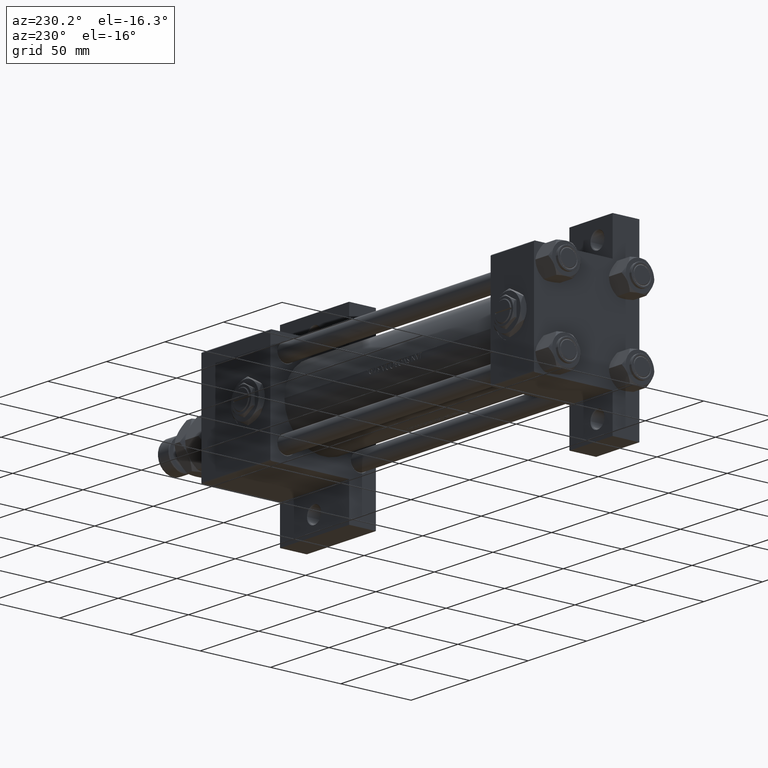
[diagram: clean part render]
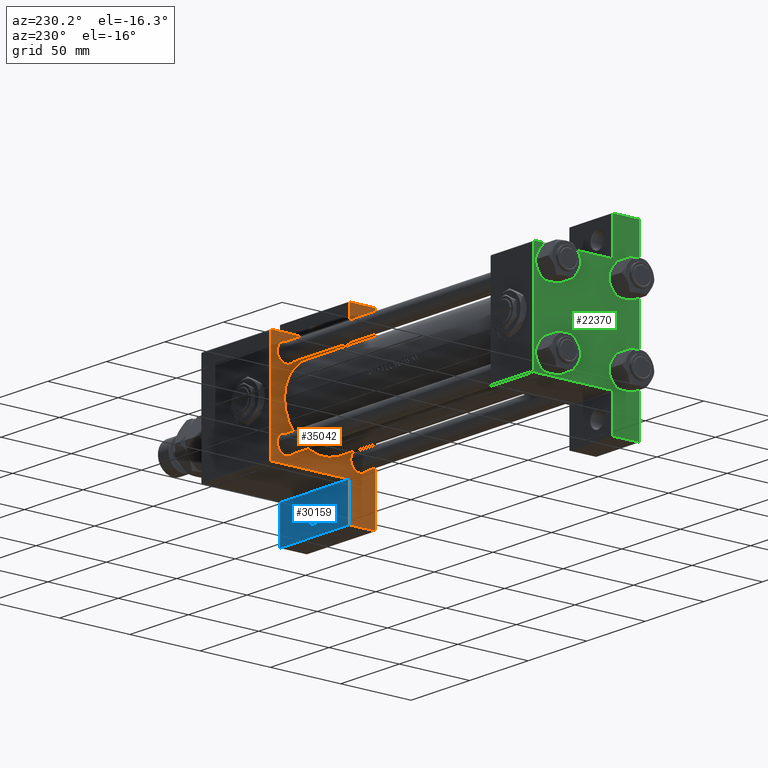
[diagram: same view with three faces highlighted in distinct colors, each labeled with its STEP entity id]
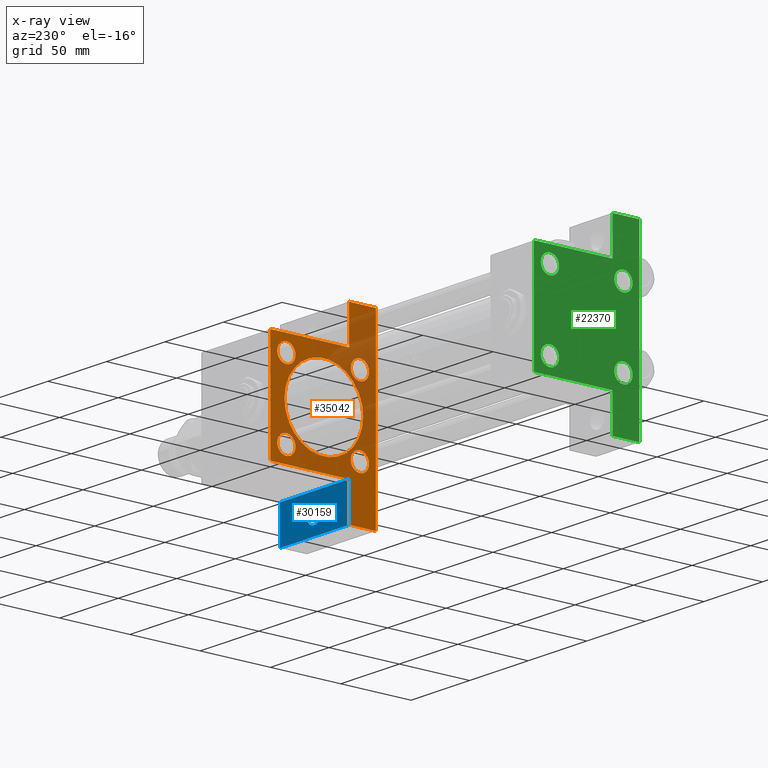
[diagram: x-ray of the same camera — body ghosted, the three highlighted faces saturated]
A machine part, auxiliary view with three faces highlighted in distinct colors.
The next image is the same camera in x-ray (body ghosted, the three faces saturated) — at least one of them is partly hidden behind the body in this view.
Their STEP definitions:

[orange] entity #35042 — the highlighted planar face has unit normal (-1, 0, 0).
#140 = DIRECTION ( 'NONE',  ( 1.000000000000000000, 0.000000000000000000, -0.000000000000000000 ) ) ;
#379 = EDGE_CURVE ( 'NONE', #19831, #35714, #4876, .T. ) ;
#416 = DIRECTION ( 'NONE',  ( 1.000000000000000000, 0.000000000000000000, -0.000000000000000000 ) ) ;
#511 = LINE ( 'NONE', #24060, #23307 ) ;
#594 = DIRECTION ( 'NONE',  ( 0.000000000000000000, 0.000000000000000000, 1.000000000000000000 ) ) ;
#682 = DIRECTION ( 'NONE',  ( 0.000000000000000000, 0.000000000000000000, -1.000000000000000000 ) ) ;
#790 = FACE_BOUND ( 'NONE', #49631, .T. ) ;
#925 = CARTESIAN_POINT ( 'NONE',  ( 225.0000000000000000, 37.50000000000000000, 37.49999999999999289 ) ) ;
#1015 = VERTEX_POINT ( 'NONE', #30078 ) ;
#1171 = EDGE_LOOP ( 'NONE', ( #29408, #1914, #22315, #2428, #14220, #44300, #37677, #29745, #23267, #49014 ) ) ;
#1790 = CARTESIAN_POINT ( 'NONE',  ( 225.0000000000000000, 26.14999999999999858, 26.15000000000000213 ) ) ;
#1914 = ORIENTED_EDGE ( 'NONE', *, *, #39760, .T. ) ;
#1984 = LINE ( 'NONE', #41700, #25754 ) ;
#2068 = DIRECTION ( 'NONE',  ( 0.000000000000000000, 0.000000000000000000, 1.000000000000000000 ) ) ;
#2079 = EDGE_CURVE ( 'NONE', #35714, #31867, #20825, .T. ) ;
#2094 = CIRCLE ( 'NONE', #37277, 6.500000000000008882 ) ;
#2306 = VECTOR ( 'NONE', #25437, 1000.000000000000000 ) ;
#2428 = ORIENTED_EDGE ( 'NONE', *, *, #379, .T. ) ;
#2810 = EDGE_CURVE ( 'NONE', #24066, #10867, #38996, .T. ) ;
#2938 = VERTEX_POINT ( 'NONE', #38190 ) ;
#3369 = VERTEX_POINT ( 'NONE', #7871 ) ;
#3680 = DIRECTION ( 'NONE',  ( 0.000000000000000000, 0.000000000000000000, 1.000000000000000000 ) ) ;
#4437 = DIRECTION ( 'NONE',  ( 1.000000000000000000, 0.000000000000000000, -0.000000000000000000 ) ) ;
#4580 = ORIENTED_EDGE ( 'NONE', *, *, #43549, .T. ) ;
#4646 = DIRECTION ( 'NONE',  ( -0.000000000000000000, 0.7071067811865474617, 0.7071067811865474617 ) ) ;
#4876 = LINE ( 'NONE', #48190, #22238 ) ;
#4996 = EDGE_CURVE ( 'NONE', #6253, #23666, #511, .T. ) ;
#5047 = CARTESIAN_POINT ( 'NONE',  ( 225.0000000000000000, 0.000000000000000000, -0.5000000000000004441 ) ) ;
#5183 = VERTEX_POINT ( 'NONE', #30285 ) ;
#6253 = VERTEX_POINT ( 'NONE', #45915 ) ;
#6256 = EDGE_LOOP ( 'NONE', ( #19313, #27223 ) ) ;
#6404 = CARTESIAN_POINT ( 'NONE',  ( 225.0000000000000000, 37.50000000000000000, -18.50000000000000355 ) ) ;
#6688 = AXIS2_PLACEMENT_3D ( 'NONE', #47500, #4437, #594 ) ;
#6868 = ORIENTED_EDGE ( 'NONE', *, *, #35113, .T. ) ;
#6940 = EDGE_CURVE ( 'NONE', #25761, #2938, #2094, .T. ) ;
#7415 = DIRECTION ( 'NONE',  ( 1.000000000000000000, 0.000000000000000000, 0.000000000000000000 ) ) ;
#7871 = CARTESIAN_POINT ( 'NONE',  ( 225.0000000000000000, -37.50000000000000000, -18.50000000000000000 ) ) ;
#8610 = AXIS2_PLACEMENT_3D ( 'NONE', #5047, #9395, #16818 ) ;
#8988 = FACE_BOUND ( 'NONE', #18325, .T. ) ;
#9061 = DIRECTION ( 'NONE',  ( 0.000000000000000000, 0.000000000000000000, -1.000000000000000000 ) ) ;
#9395 = DIRECTION ( 'NONE',  ( 1.000000000000000000, 0.000000000000000000, 0.000000000000000000 ) ) ;
#9411 = CARTESIAN_POINT ( 'NONE',  ( 225.0000000000000000, 37.24999999999996447, 37.24999999999996447 ) ) ;
#10752 = CARTESIAN_POINT ( 'NONE',  ( 225.0000000000000000, -63.50000000000002842, -18.50000000000000000 ) ) ;
#10867 = VERTEX_POINT ( 'NONE', #14576 ) ;
#11009 = DIRECTION ( 'NONE',  ( 0.000000000000000000, 0.000000000000000000, -1.000000000000000000 ) ) ;
#11034 = DIRECTION ( 'NONE',  ( 0.000000000000000000, -1.000000000000000000, 0.000000000000000000 ) ) ;
#11150 = AXIS2_PLACEMENT_3D ( 'NONE', #39506, #46967, #28457 ) ;
#11684 = EDGE_CURVE ( 'NONE', #43457, #45904, #16849, .T. ) ;
#11786 = LINE ( 'NONE', #15106, #20242 ) ;
#11793 = CARTESIAN_POINT ( 'NONE',  ( 225.0000000000000000, -26.14999999999999147, -26.15000000000000924 ) ) ;
#12252 = AXIS2_PLACEMENT_3D ( 'NONE', #26872, #7415, #11009 ) ;
#12296 = DIRECTION ( 'NONE',  ( 1.000000000000000000, 0.000000000000000000, -0.000000000000000000 ) ) ;
#12325 = FACE_BOUND ( 'NONE', #34485, .T. ) ;
#12433 = ORIENTED_EDGE ( 'NONE', *, *, #43875, .T. ) ;
#12568 = DIRECTION ( 'NONE',  ( 0.000000000000000000, 0.000000000000000000, 1.000000000000000000 ) ) ;
#13302 = AXIS2_PLACEMENT_3D ( 'NONE', #28936, #32024, #12568 ) ;
#14220 = ORIENTED_EDGE ( 'NONE', *, *, #2079, .T. ) ;
#14307 = CIRCLE ( 'NONE', #8610, 28.00000000000000000 ) ;
#14576 = CARTESIAN_POINT ( 'NONE',  ( 225.0000000000000000, -36.99999999999997158, 37.49999999999997868 ) ) ;
#14962 = EDGE_CURVE ( 'NONE', #5183, #1015, #18616, .T. ) ;
#15106 = CARTESIAN_POINT ( 'NONE',  ( 225.0000000000000000, 37.50000000000000000, -37.50000000000000000 ) ) ;
#15129 = ORIENTED_EDGE ( 'NONE', *, *, #18363, .T. ) ;
#15216 = VERTEX_POINT ( 'NONE', #47898 ) ;
#15840 = CARTESIAN_POINT ( 'NONE',  ( 225.0000000000000000, 37.50000000000000000, 36.99999999999993605 ) ) ;
#16060 = EDGE_CURVE ( 'NONE', #31867, #23666, #11786, .T. ) ;
#16403 = PLANE ( 'NONE',  #13302 ) ;
#16741 = EDGE_CURVE ( 'NONE', #15216, #10867, #17248, .T. ) ;
#16818 = DIRECTION ( 'NONE',  ( 0.000000000000000000, 0.000000000000000000, -1.000000000000000000 ) ) ;
#16849 = CIRCLE ( 'NONE', #45529, 6.499999999999995559 ) ;
#16907 = FACE_OUTER_BOUND ( 'NONE', #1171, .T. ) ;
#17248 = LINE ( 'NONE', #41335, #2306 ) ;
#17405 = DIRECTION ( 'NONE',  ( 0.000000000000000000, 0.000000000000000000, 1.000000000000000000 ) ) ;
#18325 = EDGE_LOOP ( 'NONE', ( #4580, #18555 ) ) ;
#18363 = EDGE_CURVE ( 'NONE', #37504, #26609, #37531, .T. ) ;
#18555 = ORIENTED_EDGE ( 'NONE', *, *, #11684, .T. ) ;
#18616 = CIRCLE ( 'NONE', #44824, 6.500000000000008882 ) ;
#19313 = ORIENTED_EDGE ( 'NONE', *, *, #41419, .T. ) ;
#19831 = VERTEX_POINT ( 'NONE', #6404 ) ;
#19964 = EDGE_CURVE ( 'NONE', #26273, #43719, #23696, .T. ) ;
#20038 = CIRCLE ( 'NONE', #32337, 6.500000000000008882 ) ;
#20192 = CARTESIAN_POINT ( 'NONE',  ( 225.0000000000000000, -63.50000000000002842, -37.50000000000000000 ) ) ;
#20242 = VECTOR ( 'NONE', #11034, 1000.000000000000000 ) ;
#20691 = VECTOR ( 'NONE', #4646, 1000.000000000000114 ) ;
#20825 = LINE ( 'NONE', #40312, #24759 ) ;
#21434 = DIRECTION ( 'NONE',  ( 0.000000000000000000, -9.251858538542972814E-17, -1.000000000000000000 ) ) ;
#21779 = DIRECTION ( 'NONE',  ( 1.000000000000000000, 0.000000000000000000, -0.000000000000000000 ) ) ;
#22071 = VECTOR ( 'NONE', #682, 1000.000000000000000 ) ;
#22238 = VECTOR ( 'NONE', #43817, 1000.000000000000000 ) ;
#22315 = ORIENTED_EDGE ( 'NONE', *, *, #24037, .T. ) ;
#22697 = EDGE_CURVE ( 'NONE', #6253, #3369, #27122, .T. ) ;
#23267 = ORIENTED_EDGE ( 'NONE', *, *, #40428, .F. ) ;
#23307 = VECTOR ( 'NONE', #31239, 1000.000000000000000 ) ;
#23666 = VERTEX_POINT ( 'NONE', #20192 ) ;
#23692 = VECTOR ( 'NONE', #34572, 1000.000000000000000 ) ;
#23696 = CIRCLE ( 'NONE', #12252, 28.00000000000000000 ) ;
#24037 = EDGE_CURVE ( 'NONE', #46103, #19831, #36027, .T. ) ;
#24060 = CARTESIAN_POINT ( 'NONE',  ( 225.0000000000000000, -63.50000000000002842, -18.50000000000000000 ) ) ;
#24066 = VERTEX_POINT ( 'NONE', #24489 ) ;
#24137 = CARTESIAN_POINT ( 'NONE',  ( 225.0000000000000000, 26.14999999999999858, -26.15000000000000213 ) ) ;
#24398 = CARTESIAN_POINT ( 'NONE',  ( 225.0000000000000000, -26.14999999999999147, -32.65000000000002700 ) ) ;
#24489 = CARTESIAN_POINT ( 'NONE',  ( 225.0000000000000000, -37.50000000000000000, 36.99999999999995026 ) ) ;
#24759 = VECTOR ( 'NONE', #9061, 1000.000000000000000 ) ;
#25437 = DIRECTION ( 'NONE',  ( 0.000000000000000000, -1.000000000000000000, -1.850371707708594316E-16 ) ) ;
#25754 = VECTOR ( 'NONE', #21434, 1000.000000000000000 ) ;
#25761 = VERTEX_POINT ( 'NONE', #27230 ) ;
#26273 = VERTEX_POINT ( 'NONE', #46052 ) ;
#26609 = VERTEX_POINT ( 'NONE', #24398 ) ;
#26714 = CARTESIAN_POINT ( 'NONE',  ( 225.0000000000000000, 26.14999999999999858, 19.65000000000000568 ) ) ;
#26872 = CARTESIAN_POINT ( 'NONE',  ( 225.0000000000000000, 0.000000000000000000, -0.5000000000000004441 ) ) ;
#27122 = LINE ( 'NONE', #10752, #23692 ) ;
#27223 = ORIENTED_EDGE ( 'NONE', *, *, #6940, .T. ) ;
#27230 = CARTESIAN_POINT ( 'NONE',  ( 225.0000000000000000, 26.14999999999999858, -32.65000000000001279 ) ) ;
#27309 = CARTESIAN_POINT ( 'NONE',  ( 225.0000000000000000, -26.14999999999999147, -26.15000000000000924 ) ) ;
#27398 = VECTOR ( 'NONE', #44010, 1000.000000000000114 ) ;
#27399 = DIRECTION ( 'NONE',  ( 0.000000000000000000, 0.000000000000000000, 1.000000000000000000 ) ) ;
#28018 = CIRCLE ( 'NONE', #49382, 6.500000000000008882 ) ;
#28457 = DIRECTION ( 'NONE',  ( 0.000000000000000000, 0.000000000000000000, 1.000000000000000000 ) ) ;
#28744 = CIRCLE ( 'NONE', #6688, 6.500000000000008882 ) ;
#28827 = ORIENTED_EDGE ( 'NONE', *, *, #19964, .T. ) ;
#28936 = CARTESIAN_POINT ( 'NONE',  ( 225.0000000000000000, 0.000000000000000000, 0.000000000000000000 ) ) ;
#29408 = ORIENTED_EDGE ( 'NONE', *, *, #16741, .F. ) ;
#29745 = ORIENTED_EDGE ( 'NONE', *, *, #22697, .T. ) ;
#30078 = CARTESIAN_POINT ( 'NONE',  ( 225.0000000000000000, -26.14999999999999147, 19.65000000000000213 ) ) ;
#30285 = CARTESIAN_POINT ( 'NONE',  ( 225.0000000000000000, -26.14999999999999147, 32.65000000000001990 ) ) ;
#31239 = DIRECTION ( 'NONE',  ( 0.000000000000000000, 0.000000000000000000, -1.000000000000000000 ) ) ;
#31867 = VERTEX_POINT ( 'NONE', #37268 ) ;
#32024 = DIRECTION ( 'NONE',  ( -1.000000000000000000, -0.000000000000000000, 0.000000000000000000 ) ) ;
#32038 = CARTESIAN_POINT ( 'NONE',  ( 225.0000000000000000, -37.24999999999997158, 37.24999999999997158 ) ) ;
#32137 = EDGE_CURVE ( 'NONE', #1015, #5183, #28744, .T. ) ;
#32337 = AXIS2_PLACEMENT_3D ( 'NONE', #24137, #38770, #3680 ) ;
#32725 = LINE ( 'NONE', #9411, #27398 ) ;
#33290 = DIRECTION ( 'NONE',  ( 1.000000000000000000, 0.000000000000000000, -0.000000000000000000 ) ) ;
#34485 = EDGE_LOOP ( 'NONE', ( #15129, #6868 ) ) ;
#34572 = DIRECTION ( 'NONE',  ( 0.000000000000000000, 1.000000000000000000, 0.000000000000000000 ) ) ;
#35042 = ADVANCED_FACE ( 'NONE', ( #47692, #8988, #48451, #12325, #790, #16907 ), #16403, .T. ) ;
#35113 = EDGE_CURVE ( 'NONE', #26609, #37504, #28018, .T. ) ;
#35714 = VERTEX_POINT ( 'NONE', #49799 ) ;
#35741 = DIRECTION ( 'NONE',  ( 0.000000000000000000, 0.000000000000000000, 1.000000000000000000 ) ) ;
#35930 = ORIENTED_EDGE ( 'NONE', *, *, #14962, .T. ) ;
#36027 = LINE ( 'NONE', #925, #22071 ) ;
#37207 = CIRCLE ( 'NONE', #11150, 6.499999999999995559 ) ;
#37268 = CARTESIAN_POINT ( 'NONE',  ( 225.0000000000000284, 63.50000000000000000, -37.50000000000000000 ) ) ;
#37277 = AXIS2_PLACEMENT_3D ( 'NONE', #37578, #140, #35741 ) ;
#37504 = VERTEX_POINT ( 'NONE', #49825 ) ;
#37531 = CIRCLE ( 'NONE', #48189, 6.500000000000008882 ) ;
#37578 = CARTESIAN_POINT ( 'NONE',  ( 225.0000000000000000, 26.14999999999999858, -26.15000000000000213 ) ) ;
#37677 = ORIENTED_EDGE ( 'NONE', *, *, #4996, .F. ) ;
#37698 = CARTESIAN_POINT ( 'NONE',  ( 225.0000000000000000, 3.429011037612589276E-15, -28.50000000000000000 ) ) ;
#38190 = CARTESIAN_POINT ( 'NONE',  ( 225.0000000000000000, 26.14999999999999858, -19.64999999999999503 ) ) ;
#38770 = DIRECTION ( 'NONE',  ( 1.000000000000000000, 0.000000000000000000, -0.000000000000000000 ) ) ;
#38996 = LINE ( 'NONE', #32038, #20691 ) ;
#39506 = CARTESIAN_POINT ( 'NONE',  ( 225.0000000000000000, 26.14999999999999858, 26.15000000000000213 ) ) ;
#39612 = DIRECTION ( 'NONE',  ( 0.000000000000000000, 0.000000000000000000, 1.000000000000000000 ) ) ;
#39760 = EDGE_CURVE ( 'NONE', #15216, #46103, #32725, .T. ) ;
#40312 = CARTESIAN_POINT ( 'NONE',  ( 225.0000000000000284, 63.50000000000000000, -18.50000000000000000 ) ) ;
#40428 = EDGE_CURVE ( 'NONE', #24066, #3369, #1984, .T. ) ;
#41335 = CARTESIAN_POINT ( 'NONE',  ( 225.0000000000000000, 37.50000000000000000, 37.49999999999999289 ) ) ;
#41419 = EDGE_CURVE ( 'NONE', #2938, #25761, #20038, .T. ) ;
#41700 = CARTESIAN_POINT ( 'NONE',  ( 225.0000000000000000, -37.50000000000000000, 37.49999999999997868 ) ) ;
#42252 = ORIENTED_EDGE ( 'NONE', *, *, #32137, .T. ) ;
#42671 = EDGE_LOOP ( 'NONE', ( #35930, #42252 ) ) ;
#43457 = VERTEX_POINT ( 'NONE', #26714 ) ;
#43549 = EDGE_CURVE ( 'NONE', #45904, #43457, #37207, .T. ) ;
#43719 = VERTEX_POINT ( 'NONE', #37698 ) ;
#43817 = DIRECTION ( 'NONE',  ( -0.000000000000000000, 1.000000000000000000, -0.000000000000000000 ) ) ;
#43837 = CARTESIAN_POINT ( 'NONE',  ( 225.0000000000000000, 26.14999999999999858, 32.65000000000000568 ) ) ;
#43875 = EDGE_CURVE ( 'NONE', #43719, #26273, #14307, .T. ) ;
#44010 = DIRECTION ( 'NONE',  ( 0.000000000000000000, 0.7071067811865474617, -0.7071067811865474617 ) ) ;
#44300 = ORIENTED_EDGE ( 'NONE', *, *, #16060, .T. ) ;
#44824 = AXIS2_PLACEMENT_3D ( 'NONE', #48724, #21779, #2068 ) ;
#45529 = AXIS2_PLACEMENT_3D ( 'NONE', #1790, #33290, #17405 ) ;
#45904 = VERTEX_POINT ( 'NONE', #43837 ) ;
#45915 = CARTESIAN_POINT ( 'NONE',  ( 225.0000000000000000, -63.50000000000002842, -18.50000000000000000 ) ) ;
#46052 = CARTESIAN_POINT ( 'NONE',  ( 225.0000000000000000, 0.000000000000000000, 27.50000000000000000 ) ) ;
#46103 = VERTEX_POINT ( 'NONE', #15840 ) ;
#46967 = DIRECTION ( 'NONE',  ( 1.000000000000000000, 0.000000000000000000, -0.000000000000000000 ) ) ;
#47500 = CARTESIAN_POINT ( 'NONE',  ( 225.0000000000000000, -26.14999999999999147, 26.15000000000000924 ) ) ;
#47692 = FACE_BOUND ( 'NONE', #42671, .T. ) ;
#47898 = CARTESIAN_POINT ( 'NONE',  ( 225.0000000000000000, 36.99999999999994316, 37.49999999999999289 ) ) ;
#48189 = AXIS2_PLACEMENT_3D ( 'NONE', #11793, #12296, #27399 ) ;
#48190 = CARTESIAN_POINT ( 'NONE',  ( 225.0000000000000284, 63.50000000000000000, -18.50000000000000000 ) ) ;
#48451 = FACE_BOUND ( 'NONE', #6256, .T. ) ;
#48724 = CARTESIAN_POINT ( 'NONE',  ( 225.0000000000000000, -26.14999999999999147, 26.15000000000000924 ) ) ;
#49014 = ORIENTED_EDGE ( 'NONE', *, *, #2810, .T. ) ;
#49382 = AXIS2_PLACEMENT_3D ( 'NONE', #27309, #416, #39612 ) ;
#49631 = EDGE_LOOP ( 'NONE', ( #28827, #12433 ) ) ;
#49799 = CARTESIAN_POINT ( 'NONE',  ( 225.0000000000000284, 63.50000000000000000, -18.50000000000000000 ) ) ;
#49825 = CARTESIAN_POINT ( 'NONE',  ( 225.0000000000000000, -26.14999999999999147, -19.65000000000000213 ) ) ;

[blue] entity #30159 — the highlighted planar face has unit normal (0, 1, 0).
#259 = ORIENTED_EDGE ( 'NONE', *, *, #37398, .F. ) ;
#379 = EDGE_CURVE ( 'NONE', #19831, #35714, #4876, .T. ) ;
#850 = DIRECTION ( 'NONE',  ( -1.000000000000000000, 8.232585987686542394E-16, -0.000000000000000000 ) ) ;
#2999 = VECTOR ( 'NONE', #46515, 1000.000000000000000 ) ;
#4876 = LINE ( 'NONE', #48190, #22238 ) ;
#6404 = CARTESIAN_POINT ( 'NONE',  ( 225.0000000000000000, 37.50000000000000000, -18.50000000000000355 ) ) ;
#8013 = ORIENTED_EDGE ( 'NONE', *, *, #379, .F. ) ;
#8619 = CARTESIAN_POINT ( 'NONE',  ( 255.0000000000000000, 51.00000000000000000, -18.50000000000000000 ) ) ;
#9864 = CARTESIAN_POINT ( 'NONE',  ( 249.0004999999997892, 51.00000000000000000, -18.50000000000000000 ) ) ;
#11380 = AXIS2_PLACEMENT_3D ( 'NONE', #8619, #43471, #31665 ) ;
#14992 = ORIENTED_EDGE ( 'NONE', *, *, #19195, .T. ) ;
#15454 = CIRCLE ( 'NONE', #44115, 5.999500000000212552 ) ;
#17691 = DIRECTION ( 'NONE',  ( 0.000000000000000000, 0.000000000000000000, 1.000000000000000000 ) ) ;
#17814 = EDGE_LOOP ( 'NONE', ( #14992, #46746 ) ) ;
#18625 = DIRECTION ( 'NONE',  ( 1.000000000000000000, 0.000000000000000000, 0.000000000000000000 ) ) ;
#19195 = EDGE_CURVE ( 'NONE', #40860, #40845, #33500, .T. ) ;
#19411 = EDGE_CURVE ( 'NONE', #40845, #40860, #15454, .T. ) ;
#19831 = VERTEX_POINT ( 'NONE', #6404 ) ;
#20303 = CARTESIAN_POINT ( 'NONE',  ( 225.0000000000000284, 37.50000000000000000, -18.50000000000000000 ) ) ;
#20599 = VECTOR ( 'NONE', #850, 1000.000000000000000 ) ;
#21858 = DIRECTION ( 'NONE',  ( 0.000000000000000000, -1.000000000000000000, 0.000000000000000000 ) ) ;
#22238 = VECTOR ( 'NONE', #43817, 1000.000000000000000 ) ;
#24158 = LINE ( 'NONE', #20303, #20599 ) ;
#29383 = LINE ( 'NONE', #33244, #2999 ) ;
#30147 = CARTESIAN_POINT ( 'NONE',  ( 255.0000000000000000, 51.00000000000000000, -18.50000000000000000 ) ) ;
#30159 = ADVANCED_FACE ( 'NONE', ( #50006, #46146 ), #45906, .T. ) ;
#31665 = DIRECTION ( 'NONE',  ( 1.000000000000000000, 0.000000000000000000, 0.000000000000000000 ) ) ;
#32955 = EDGE_CURVE ( 'NONE', #38470, #19831, #24158, .T. ) ;
#33141 = LINE ( 'NONE', #46218, #33895 ) ;
#33244 = CARTESIAN_POINT ( 'NONE',  ( 225.0000000000000284, 63.50000000000000000, -18.50000000000000000 ) ) ;
#33500 = CIRCLE ( 'NONE', #11380, 5.999500000000212552 ) ;
#33746 = DIRECTION ( 'NONE',  ( -0.000000000000000000, -0.000000000000000000, -1.000000000000000000 ) ) ;
#33895 = VECTOR ( 'NONE', #21858, 1000.000000000000000 ) ;
#35295 = ORIENTED_EDGE ( 'NONE', *, *, #32955, .F. ) ;
#35714 = VERTEX_POINT ( 'NONE', #49799 ) ;
#37398 = EDGE_CURVE ( 'NONE', #43403, #38470, #33141, .T. ) ;
#38197 = CARTESIAN_POINT ( 'NONE',  ( 0.000000000000000000, 0.000000000000000000, -18.50000000000000000 ) ) ;
#38264 = CARTESIAN_POINT ( 'NONE',  ( 284.0000000000000568, 63.49999999999997158, -18.50000000000000000 ) ) ;
#38470 = VERTEX_POINT ( 'NONE', #41287 ) ;
#40845 = VERTEX_POINT ( 'NONE', #9864 ) ;
#40860 = VERTEX_POINT ( 'NONE', #45496 ) ;
#41287 = CARTESIAN_POINT ( 'NONE',  ( 284.0000000000000568, 37.49999999999995026, -18.50000000000000000 ) ) ;
#42048 = DIRECTION ( 'NONE',  ( 1.000000000000000000, 0.000000000000000000, -0.000000000000000000 ) ) ;
#43403 = VERTEX_POINT ( 'NONE', #38264 ) ;
#43471 = DIRECTION ( 'NONE',  ( -0.000000000000000000, -0.000000000000000000, -1.000000000000000000 ) ) ;
#43817 = DIRECTION ( 'NONE',  ( -0.000000000000000000, 1.000000000000000000, -0.000000000000000000 ) ) ;
#44115 = AXIS2_PLACEMENT_3D ( 'NONE', #30147, #33746, #18625 ) ;
#44594 = EDGE_LOOP ( 'NONE', ( #8013, #35295, #259, #46778 ) ) ;
#45496 = CARTESIAN_POINT ( 'NONE',  ( 260.9995000000002392, 51.00000000000000000, -18.50000000000000000 ) ) ;
#45906 = PLANE ( 'NONE',  #46065 ) ;
#46065 = AXIS2_PLACEMENT_3D ( 'NONE', #38197, #17691, #42048 ) ;
#46146 = FACE_OUTER_BOUND ( 'NONE', #44594, .T. ) ;
#46218 = CARTESIAN_POINT ( 'NONE',  ( 284.0000000000000568, 63.49999999999997158, -18.50000000000000000 ) ) ;
#46515 = DIRECTION ( 'NONE',  ( 1.000000000000000000, -4.704334850106595794E-16, 0.000000000000000000 ) ) ;
#46746 = ORIENTED_EDGE ( 'NONE', *, *, #19411, .T. ) ;
#46778 = ORIENTED_EDGE ( 'NONE', *, *, #47604, .F. ) ;
#47604 = EDGE_CURVE ( 'NONE', #35714, #43403, #29383, .T. ) ;
#48190 = CARTESIAN_POINT ( 'NONE',  ( 225.0000000000000284, 63.50000000000000000, -18.50000000000000000 ) ) ;
#49799 = CARTESIAN_POINT ( 'NONE',  ( 225.0000000000000284, 63.50000000000000000, -18.50000000000000000 ) ) ;
#50006 = FACE_BOUND ( 'NONE', #17814, .T. ) ;

[green] entity #22370 — the highlighted planar face has unit normal (-1, 0, -0).
#142 = LINE ( 'NONE', #30130, #49992 ) ;
#456 = CIRCLE ( 'NONE', #31516, 6.500000000000023093 ) ;
#479 = AXIS2_PLACEMENT_3D ( 'NONE', #14248, #49651, #18859 ) ;
#777 = VERTEX_POINT ( 'NONE', #38359 ) ;
#1163 = CARTESIAN_POINT ( 'NONE',  ( 0.000000000000000000, 26.14999999999999858, 26.15000000000000213 ) ) ;
#1269 = DIRECTION ( 'NONE',  ( 0.000000000000000000, -1.000000000000000000, -9.251858538542972814E-17 ) ) ;
#1612 = EDGE_CURVE ( 'NONE', #2478, #7399, #6850, .T. ) ;
#1923 = CARTESIAN_POINT ( 'NONE',  ( 0.000000000000000000, 26.14999999999999858, -26.15000000000000213 ) ) ;
#2478 = VERTEX_POINT ( 'NONE', #8739 ) ;
#2750 = DIRECTION ( 'NONE',  ( 0.000000000000000000, 0.000000000000000000, 1.000000000000000000 ) ) ;
#3179 = ORIENTED_EDGE ( 'NONE', *, *, #5083, .T. ) ;
#3465 = CARTESIAN_POINT ( 'NONE',  ( 0.000000000000000000, 37.24999999999999289, 37.24999999999999289 ) ) ;
#3642 = CARTESIAN_POINT ( 'NONE',  ( 1.595073532467135757E-14, 63.50000000000001421, -18.50000000000000355 ) ) ;
#3705 = ORIENTED_EDGE ( 'NONE', *, *, #42070, .T. ) ;
#3749 = CIRCLE ( 'NONE', #479, 6.500000000000015987 ) ;
#3755 = EDGE_CURVE ( 'NONE', #18399, #19358, #42669, .T. ) ;
#4267 = DIRECTION ( 'NONE',  ( 1.000000000000000000, -0.000000000000000000, 0.000000000000000000 ) ) ;
#4516 = CARTESIAN_POINT ( 'NONE',  ( 0.000000000000000000, -26.14999999999999147, -26.15000000000000924 ) ) ;
#4913 = CARTESIAN_POINT ( 'NONE',  ( 0.000000000000000000, 0.000000000000000000, 0.000000000000000000 ) ) ;
#5083 = EDGE_CURVE ( 'NONE', #2478, #19123, #22691, .T. ) ;
#5270 = CARTESIAN_POINT ( 'NONE',  ( 0.000000000000000000, -26.14999999999999147, 26.15000000000000924 ) ) ;
#5657 = EDGE_CURVE ( 'NONE', #19358, #32962, #48931, .T. ) ;
#6461 = VERTEX_POINT ( 'NONE', #48176 ) ;
#6850 = LINE ( 'NONE', #22204, #32961 ) ;
#6974 = CIRCLE ( 'NONE', #10265, 6.500000000000023093 ) ;
#7399 = VERTEX_POINT ( 'NONE', #20285 ) ;
#7722 = LINE ( 'NONE', #3642, #15496 ) ;
#7758 = VECTOR ( 'NONE', #31376, 1000.000000000000114 ) ;
#7852 = EDGE_CURVE ( 'NONE', #10156, #28357, #3749, .T. ) ;
#8285 = ORIENTED_EDGE ( 'NONE', *, *, #3755, .T. ) ;
#8385 = AXIS2_PLACEMENT_3D ( 'NONE', #30386, #14521, #2750 ) ;
#8438 = CARTESIAN_POINT ( 'NONE',  ( 1.595073532467135441E-14, 63.50000000000000000, -18.50000000000000355 ) ) ;
#8739 = CARTESIAN_POINT ( 'NONE',  ( 0.000000000000000000, -37.50000000000000711, 36.99999999999999289 ) ) ;
#8854 = VERTEX_POINT ( 'NONE', #26061 ) ;
#10138 = CARTESIAN_POINT ( 'NONE',  ( 0.000000000000000000, 26.14999999999999858, 32.65000000000002700 ) ) ;
#10156 = VERTEX_POINT ( 'NONE', #11657 ) ;
#10265 = AXIS2_PLACEMENT_3D ( 'NONE', #5270, #17054, #12712 ) ;
#10438 = DIRECTION ( 'NONE',  ( 0.000000000000000000, 9.251858538542971581E-17, -1.000000000000000000 ) ) ;
#10674 = DIRECTION ( 'NONE',  ( 0.000000000000000000, -1.734723475976806848E-16, -1.000000000000000000 ) ) ;
#11162 = CARTESIAN_POINT ( 'NONE',  ( 1.595073532467135441E-14, 63.50000000000001421, 26.72167621838005047 ) ) ;
#11176 = ORIENTED_EDGE ( 'NONE', *, *, #30987, .T. ) ;
#11657 = CARTESIAN_POINT ( 'NONE',  ( 0.000000000000000000, -26.14999999999999147, -19.64999999999999503 ) ) ;
#12476 = EDGE_CURVE ( 'NONE', #32983, #39052, #35688, .T. ) ;
#12712 = DIRECTION ( 'NONE',  ( 0.000000000000000000, 0.000000000000000000, 1.000000000000000000 ) ) ;
#13103 = FACE_BOUND ( 'NONE', #36323, .T. ) ;
#13198 = DIRECTION ( 'NONE',  ( 0.000000000000000000, 0.000000000000000000, 1.000000000000000000 ) ) ;
#13512 = CARTESIAN_POINT ( 'NONE',  ( 1.595073532467135441E-14, 63.50000000000000000, -37.50000000000002132 ) ) ;
#14163 = CARTESIAN_POINT ( 'NONE',  ( 0.000000000000000000, 26.14999999999999858, -26.15000000000000213 ) ) ;
#14248 = CARTESIAN_POINT ( 'NONE',  ( 0.000000000000000000, -26.14999999999999147, -26.15000000000000924 ) ) ;
#14521 = DIRECTION ( 'NONE',  ( 1.000000000000000000, -0.000000000000000000, 0.000000000000000000 ) ) ;
#14709 = ORIENTED_EDGE ( 'NONE', *, *, #23086, .T. ) ;
#14997 = CARTESIAN_POINT ( 'NONE',  ( -0.000000000000000000, -37.25000000000000000, 37.25000000000000000 ) ) ;
#15496 = VECTOR ( 'NONE', #35143, 1000.000000000000000 ) ;
#15646 = LINE ( 'NONE', #26937, #27089 ) ;
#16463 = CARTESIAN_POINT ( 'NONE',  ( 3.977209754999747208E-16, -63.50000000000000000, -37.49999999999999289 ) ) ;
#16874 = EDGE_CURVE ( 'NONE', #39052, #32983, #22774, .T. ) ;
#16903 = DIRECTION ( 'NONE',  ( 0.000000000000000000, 0.000000000000000000, 1.000000000000000000 ) ) ;
#17054 = DIRECTION ( 'NONE',  ( 1.000000000000000000, -0.000000000000000000, 0.000000000000000000 ) ) ;
#17191 = FACE_BOUND ( 'NONE', #26590, .T. ) ;
#17227 = CARTESIAN_POINT ( 'NONE',  ( 0.000000000000000000, 26.14999999999999858, -19.64999999999998792 ) ) ;
#17281 = CARTESIAN_POINT ( 'NONE',  ( 0.000000000000000000, 36.99999999999999289, 37.50000000000000000 ) ) ;
#18148 = EDGE_LOOP ( 'NONE', ( #32325, #3179, #21095, #3705, #11176, #40030, #8285, #31454, #32530, #32323 ) ) ;
#18190 = CIRCLE ( 'NONE', #8385, 6.500000000000023093 ) ;
#18399 = VERTEX_POINT ( 'NONE', #8438 ) ;
#18576 = DIRECTION ( 'NONE',  ( 0.000000000000000000, 0.7071067811865474617, -0.7071067811865474617 ) ) ;
#18822 = LINE ( 'NONE', #3465, #45510 ) ;
#18859 = DIRECTION ( 'NONE',  ( 0.000000000000000000, 0.000000000000000000, 1.000000000000000000 ) ) ;
#19038 = VECTOR ( 'NONE', #19262, 1000.000000000000000 ) ;
#19123 = VERTEX_POINT ( 'NONE', #27901 ) ;
#19262 = DIRECTION ( 'NONE',  ( 4.278042683914906889E-17, -1.000000000000000000, 0.000000000000000000 ) ) ;
#19358 = VERTEX_POINT ( 'NONE', #13512 ) ;
#19592 = CIRCLE ( 'NONE', #32690, 6.500000000000015987 ) ;
#20125 = DIRECTION ( 'NONE',  ( 0.000000000000000000, 0.000000000000000000, 1.000000000000000000 ) ) ;
#20285 = CARTESIAN_POINT ( 'NONE',  ( -7.145701223179004046E-16, -37.50000000000000711, -18.50000000000000355 ) ) ;
#20516 = DIRECTION ( 'NONE',  ( -0.000000000000000000, 0.000000000000000000, 1.000000000000000000 ) ) ;
#21095 = ORIENTED_EDGE ( 'NONE', *, *, #27665, .F. ) ;
#22204 = CARTESIAN_POINT ( 'NONE',  ( 0.000000000000000000, -37.50000000000000711, 37.49999999999999289 ) ) ;
#22370 = ADVANCED_FACE ( 'NONE', ( #17191, #47717, #13103, #24871, #40517 ), #40012, .T. ) ;
#22691 = LINE ( 'NONE', #14997, #7758 ) ;
#22774 = CIRCLE ( 'NONE', #35044, 6.500000000000015987 ) ;
#23086 = EDGE_CURVE ( 'NONE', #28357, #10156, #19592, .T. ) ;
#23183 = EDGE_CURVE ( 'NONE', #18399, #777, #7722, .T. ) ;
#24080 = DIRECTION ( 'NONE',  ( 1.000000000000000000, -0.000000000000000000, 0.000000000000000000 ) ) ;
#24871 = FACE_BOUND ( 'NONE', #41488, .T. ) ;
#25068 = CARTESIAN_POINT ( 'NONE',  ( 0.000000000000000000, 37.49999999999999289, -37.50000000000000000 ) ) ;
#25164 = VERTEX_POINT ( 'NONE', #10138 ) ;
#25422 = EDGE_CURVE ( 'NONE', #38711, #32962, #142, .T. ) ;
#25657 = VERTEX_POINT ( 'NONE', #34939 ) ;
#26061 = CARTESIAN_POINT ( 'NONE',  ( 0.000000000000000000, 26.14999999999999858, 19.64999999999998437 ) ) ;
#26103 = AXIS2_PLACEMENT_3D ( 'NONE', #4913, #36162, #20516 ) ;
#26590 = EDGE_LOOP ( 'NONE', ( #34526, #33856 ) ) ;
#26937 = CARTESIAN_POINT ( 'NONE',  ( 0.000000000000000000, 37.49999999999999289, 37.50000000000000000 ) ) ;
#27089 = VECTOR ( 'NONE', #46188, 1000.000000000000000 ) ;
#27665 = EDGE_CURVE ( 'NONE', #47360, #19123, #15646, .T. ) ;
#27752 = CARTESIAN_POINT ( 'NONE',  ( 0.000000000000000000, -26.14999999999999147, -32.65000000000002700 ) ) ;
#27901 = CARTESIAN_POINT ( 'NONE',  ( 0.000000000000000000, -37.00000000000000711, 37.49999999999999289 ) ) ;
#27972 = ORIENTED_EDGE ( 'NONE', *, *, #34508, .T. ) ;
#28357 = VERTEX_POINT ( 'NONE', #27752 ) ;
#28825 = AXIS2_PLACEMENT_3D ( 'NONE', #1163, #44726, #13198 ) ;
#29043 = VERTEX_POINT ( 'NONE', #38437 ) ;
#29422 = CARTESIAN_POINT ( 'NONE',  ( 3.977209754999747208E-16, -63.50000000000000000, -18.50000000000000355 ) ) ;
#29777 = DIRECTION ( 'NONE',  ( 1.000000000000000000, -0.000000000000000000, 0.000000000000000000 ) ) ;
#29919 = EDGE_LOOP ( 'NONE', ( #43804, #14709 ) ) ;
#29989 = EDGE_CURVE ( 'NONE', #7399, #38711, #31042, .T. ) ;
#30130 = CARTESIAN_POINT ( 'NONE',  ( 3.977209754999747208E-16, -63.49999999999998579, 26.72167621838007889 ) ) ;
#30386 = CARTESIAN_POINT ( 'NONE',  ( 0.000000000000000000, -26.14999999999999147, 26.15000000000000924 ) ) ;
#30987 = EDGE_CURVE ( 'NONE', #6461, #777, #43114, .T. ) ;
#31042 = LINE ( 'NONE', #38745, #19038 ) ;
#31376 = DIRECTION ( 'NONE',  ( -0.000000000000000000, 0.7071067811865474617, 0.7071067811865474617 ) ) ;
#31454 = ORIENTED_EDGE ( 'NONE', *, *, #5657, .T. ) ;
#31516 = AXIS2_PLACEMENT_3D ( 'NONE', #40233, #24080, #16903 ) ;
#32191 = ORIENTED_EDGE ( 'NONE', *, *, #45112, .T. ) ;
#32323 = ORIENTED_EDGE ( 'NONE', *, *, #29989, .F. ) ;
#32325 = ORIENTED_EDGE ( 'NONE', *, *, #1612, .F. ) ;
#32530 = ORIENTED_EDGE ( 'NONE', *, *, #25422, .F. ) ;
#32690 = AXIS2_PLACEMENT_3D ( 'NONE', #4516, #4267, #20125 ) ;
#32711 = ORIENTED_EDGE ( 'NONE', *, *, #16874, .T. ) ;
#32820 = DIRECTION ( 'NONE',  ( 0.000000000000000000, 0.000000000000000000, -1.000000000000000000 ) ) ;
#32961 = VECTOR ( 'NONE', #10438, 1000.000000000000000 ) ;
#32962 = VERTEX_POINT ( 'NONE', #16463 ) ;
#32983 = VERTEX_POINT ( 'NONE', #17227 ) ;
#33856 = ORIENTED_EDGE ( 'NONE', *, *, #34295, .T. ) ;
#34224 = DIRECTION ( 'NONE',  ( 0.000000000000000000, -1.734723475976806848E-16, -1.000000000000000000 ) ) ;
#34295 = EDGE_CURVE ( 'NONE', #29043, #25657, #18190, .T. ) ;
#34508 = EDGE_CURVE ( 'NONE', #8854, #25164, #48500, .T. ) ;
#34526 = ORIENTED_EDGE ( 'NONE', *, *, #41331, .T. ) ;
#34939 = CARTESIAN_POINT ( 'NONE',  ( 0.000000000000000000, -26.14999999999999147, 32.65000000000003411 ) ) ;
#35044 = AXIS2_PLACEMENT_3D ( 'NONE', #14163, #29777, #45708 ) ;
#35143 = DIRECTION ( 'NONE',  ( -2.877097866686192789E-16, -1.000000000000000000, 0.000000000000000000 ) ) ;
#35688 = CIRCLE ( 'NONE', #48010, 6.500000000000015987 ) ;
#36162 = DIRECTION ( 'NONE',  ( -1.000000000000000000, 0.000000000000000000, -0.000000000000000000 ) ) ;
#36323 = EDGE_LOOP ( 'NONE', ( #43297, #32711 ) ) ;
#38041 = DIRECTION ( 'NONE',  ( 1.000000000000000000, -0.000000000000000000, 0.000000000000000000 ) ) ;
#38359 = CARTESIAN_POINT ( 'NONE',  ( 0.000000000000000000, 37.49999999999999289, -18.49999999999999645 ) ) ;
#38437 = CARTESIAN_POINT ( 'NONE',  ( 0.000000000000000000, -26.14999999999999147, 19.64999999999999147 ) ) ;
#38711 = VERTEX_POINT ( 'NONE', #29422 ) ;
#38745 = CARTESIAN_POINT ( 'NONE',  ( 3.977209754999744250E-16, -63.49999999999998579, -18.50000000000000355 ) ) ;
#39052 = VERTEX_POINT ( 'NONE', #44134 ) ;
#39584 = VECTOR ( 'NONE', #34224, 1000.000000000000000 ) ;
#40012 = PLANE ( 'NONE',  #26103 ) ;
#40030 = ORIENTED_EDGE ( 'NONE', *, *, #23183, .F. ) ;
#40233 = CARTESIAN_POINT ( 'NONE',  ( 0.000000000000000000, 26.14999999999999858, 26.15000000000000213 ) ) ;
#40517 = FACE_OUTER_BOUND ( 'NONE', #18148, .T. ) ;
#41270 = VECTOR ( 'NONE', #32820, 1000.000000000000000 ) ;
#41331 = EDGE_CURVE ( 'NONE', #25657, #29043, #6974, .T. ) ;
#41488 = EDGE_LOOP ( 'NONE', ( #32191, #27972 ) ) ;
#42070 = EDGE_CURVE ( 'NONE', #47360, #6461, #18822, .T. ) ;
#42669 = LINE ( 'NONE', #11162, #39584 ) ;
#43114 = LINE ( 'NONE', #44116, #41270 ) ;
#43297 = ORIENTED_EDGE ( 'NONE', *, *, #12476, .T. ) ;
#43804 = ORIENTED_EDGE ( 'NONE', *, *, #7852, .T. ) ;
#44116 = CARTESIAN_POINT ( 'NONE',  ( 0.000000000000000000, 37.49999999999999289, 37.50000000000000000 ) ) ;
#44134 = CARTESIAN_POINT ( 'NONE',  ( 0.000000000000000000, 26.14999999999999858, -32.65000000000001990 ) ) ;
#44726 = DIRECTION ( 'NONE',  ( 1.000000000000000000, -0.000000000000000000, 0.000000000000000000 ) ) ;
#45112 = EDGE_CURVE ( 'NONE', #25164, #8854, #456, .T. ) ;
#45494 = DIRECTION ( 'NONE',  ( 0.000000000000000000, 0.000000000000000000, 1.000000000000000000 ) ) ;
#45510 = VECTOR ( 'NONE', #18576, 1000.000000000000114 ) ;
#45708 = DIRECTION ( 'NONE',  ( 0.000000000000000000, 0.000000000000000000, 1.000000000000000000 ) ) ;
#46188 = DIRECTION ( 'NONE',  ( 0.000000000000000000, -1.000000000000000000, -9.251858538542971581E-17 ) ) ;
#47111 = VECTOR ( 'NONE', #1269, 1000.000000000000000 ) ;
#47360 = VERTEX_POINT ( 'NONE', #17281 ) ;
#47717 = FACE_BOUND ( 'NONE', #29919, .T. ) ;
#48010 = AXIS2_PLACEMENT_3D ( 'NONE', #1923, #38041, #45494 ) ;
#48176 = CARTESIAN_POINT ( 'NONE',  ( 0.000000000000000000, 37.49999999999999289, 37.00000000000000000 ) ) ;
#48500 = CIRCLE ( 'NONE', #28825, 6.500000000000023093 ) ;
#48931 = LINE ( 'NONE', #25068, #47111 ) ;
#49651 = DIRECTION ( 'NONE',  ( 1.000000000000000000, -0.000000000000000000, 0.000000000000000000 ) ) ;
#49992 = VECTOR ( 'NONE', #10674, 1000.000000000000000 ) ;